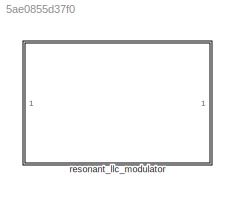
MODEL slx_5ae0855d37f0
KIND library
CONFIG AbsTol = auto
CONFIG EnableMultiTasking = off
CONFIG FixedStep = auto
CONFIG MaxStep = auto
CONFIG MinStep = auto
CONFIG RelTol = 1e-3
CONFIG SampleTimeConstraint = Unconstrained
CONFIG SolverName = VariableStepAuto
CONFIG StartTime = 0.0
CONFIG StopTime = 10.0
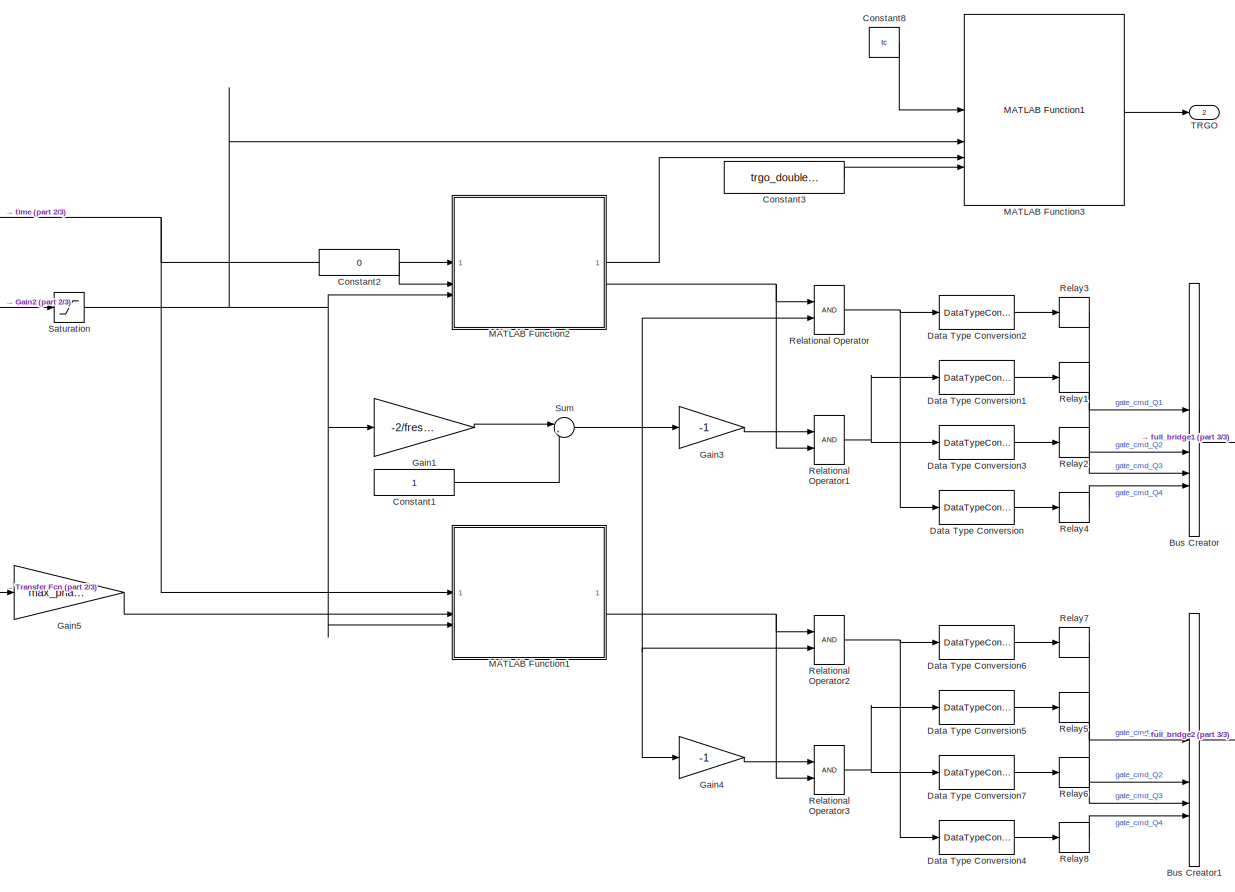
[diagram: resonant_llc_modulator - part 1/3, center side, full height]
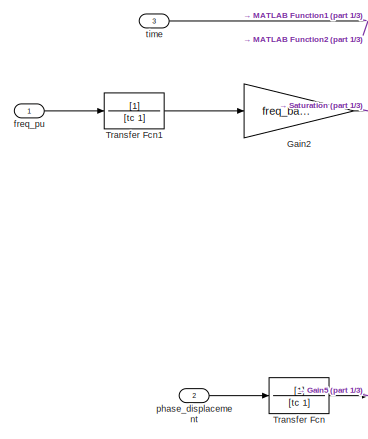
[diagram: resonant_llc_modulator - part 2/3, middle left region]
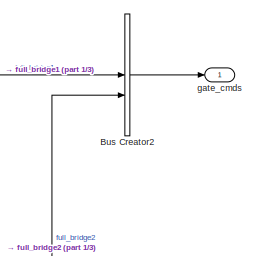
[diagram: resonant_llc_modulator - part 3/3, middle right region]
BLOCK [SubSystem] resonant_llc_modulator
BLOCK [BusCreator] resonant_llc_modulator/Bus Creator
  DisplayOption = bar
  InheritFromInputs = on
  Inputs = 4
BLOCK [BusCreator] resonant_llc_modulator/Bus Creator1
  DisplayOption = bar
  InheritFromInputs = on
  Inputs = 4
BLOCK [BusCreator] resonant_llc_modulator/Bus Creator2
  DisplayOption = bar
  InheritFromInputs = on
  Inputs = 2
BLOCK [Constant] resonant_llc_modulator/Constant1
BLOCK [Constant] resonant_llc_modulator/Constant2
  Value = 0
BLOCK [Constant] resonant_llc_modulator/Constant3
  Value = trgo_double_update
BLOCK [Constant] resonant_llc_modulator/Constant8
  Value = tc
BLOCK [DataTypeConversion] resonant_llc_modulator/Data Type Conversion
  OutDataTypeStr = double
  RndMeth = Floor
  SaturateOnIntegerOverflow = off
BLOCK [DataTypeConversion] resonant_llc_modulator/Data Type Conversion1
  OutDataTypeStr = double
  RndMeth = Floor
  SaturateOnIntegerOverflow = off
BLOCK [DataTypeConversion] resonant_llc_modulator/Data Type Conversion2
  OutDataTypeStr = double
  RndMeth = Floor
  SaturateOnIntegerOverflow = off
BLOCK [DataTypeConversion] resonant_llc_modulator/Data Type Conversion3
  OutDataTypeStr = double
  RndMeth = Floor
  SaturateOnIntegerOverflow = off
BLOCK [DataTypeConversion] resonant_llc_modulator/Data Type Conversion4
  OutDataTypeStr = double
  RndMeth = Floor
  SaturateOnIntegerOverflow = off
BLOCK [DataTypeConversion] resonant_llc_modulator/Data Type Conversion5
  OutDataTypeStr = double
  RndMeth = Floor
  SaturateOnIntegerOverflow = off
BLOCK [DataTypeConversion] resonant_llc_modulator/Data Type Conversion6
  OutDataTypeStr = double
  RndMeth = Floor
  SaturateOnIntegerOverflow = off
BLOCK [DataTypeConversion] resonant_llc_modulator/Data Type Conversion7
  OutDataTypeStr = double
  RndMeth = Floor
  SaturateOnIntegerOverflow = off
BLOCK [Gain] resonant_llc_modulator/Gain1
  Gain = -2/fres/sqrt(2)
  OutDataTypeStr = double
BLOCK [Gain] resonant_llc_modulator/Gain2
  Gain = freq_base
  OutDataTypeStr = double
BLOCK [Gain] resonant_llc_modulator/Gain3
  Gain = -1
  OutDataTypeStr = double
BLOCK [Gain] resonant_llc_modulator/Gain4
  Gain = -1
  OutDataTypeStr = double
BLOCK [Gain] resonant_llc_modulator/Gain5
  Gain = max_phase_displacement
  OutDataTypeStr = double
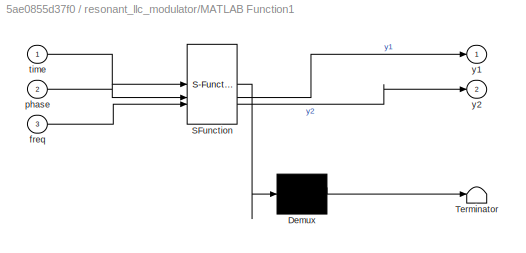
BLOCK [SubSystem] resonant_llc_modulator/MATLAB Function1
  ErrorFcn = Stateflow.Translate.translate
  PermitHierarchicalResolution = ExplicitOnly
  SFBlockType = MATLAB Function
  SystemSampleTime = tc
  TreatAsAtomicUnit = on
BLOCK [Demux] resonant_llc_modulator/MATLAB Function1/ Demux 
  Outputs = 1
BLOCK [S-Function] resonant_llc_modulator/MATLAB Function1/ SFunction 
  EnableBusSupport = off
  FunctionName = sf_sfun
  PortCounts = [3 3]
  SFcnIsStateOwnerBlock = off
  SFunctionDeploymentMode = off
  Tag = Stateflow S-Function 1
BLOCK [Terminator] resonant_llc_modulator/MATLAB Function1/ Terminator 
BLOCK [Inport] resonant_llc_modulator/MATLAB Function1/freq
  Port = 3
BLOCK [Inport] resonant_llc_modulator/MATLAB Function1/phase
  Port = 2
BLOCK [Inport] resonant_llc_modulator/MATLAB Function1/time
BLOCK [Outport] resonant_llc_modulator/MATLAB Function1/y1
BLOCK [Outport] resonant_llc_modulator/MATLAB Function1/y2
  Port = 2
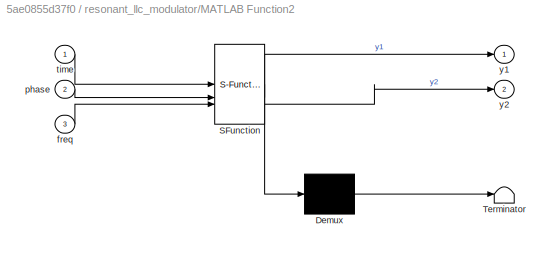
BLOCK [SubSystem] resonant_llc_modulator/MATLAB Function2
  ErrorFcn = Stateflow.Translate.translate
  PermitHierarchicalResolution = ExplicitOnly
  SFBlockType = MATLAB Function
  SystemSampleTime = tc
  TreatAsAtomicUnit = on
BLOCK [Demux] resonant_llc_modulator/MATLAB Function2/ Demux 
  Outputs = 1
BLOCK [S-Function] resonant_llc_modulator/MATLAB Function2/ SFunction 
  EnableBusSupport = off
  FunctionName = sf_sfun
  PortCounts = [3 3]
  SFcnIsStateOwnerBlock = off
  SFunctionDeploymentMode = off
  Tag = Stateflow S-Function 3
BLOCK [Terminator] resonant_llc_modulator/MATLAB Function2/ Terminator 
BLOCK [Inport] resonant_llc_modulator/MATLAB Function2/freq
  Port = 3
BLOCK [Inport] resonant_llc_modulator/MATLAB Function2/phase
  Port = 2
BLOCK [Inport] resonant_llc_modulator/MATLAB Function2/time
BLOCK [Outport] resonant_llc_modulator/MATLAB Function2/y1
BLOCK [Outport] resonant_llc_modulator/MATLAB Function2/y2
  Port = 2
BLOCK [Reference] resonant_llc_modulator/MATLAB Function3  REF=dab_single_phase_pwm_modulator/dab_single_phase_pwm_modulator/dab_single_phase_pwm_modulator/MATLAB Function1  (lib defined in slx_54a077001148)
  SourceBlock = dab_single_phase_pwm_modulator/dab_single_phase_pwm_modulator/dab_single_phase_pwm_modulator/MATLAB Function1
  SourceType = SubSystem
BLOCK [RelationalOperator] resonant_llc_modulator/Relational Operator
BLOCK [RelationalOperator] resonant_llc_modulator/Relational Operator1
BLOCK [RelationalOperator] resonant_llc_modulator/Relational Operator2
BLOCK [RelationalOperator] resonant_llc_modulator/Relational Operator3
BLOCK [Relay] resonant_llc_modulator/Relay1
  OffOutputValue = neg_cmd_gate
  OnOutputValue = pos_cmd_gate
BLOCK [Relay] resonant_llc_modulator/Relay2
  OffOutputValue = neg_cmd_gate
  OnOutputValue = pos_cmd_gate
BLOCK [Relay] resonant_llc_modulator/Relay3
  OffOutputValue = neg_cmd_gate
  OnOutputValue = pos_cmd_gate
BLOCK [Relay] resonant_llc_modulator/Relay4
  OffOutputValue = neg_cmd_gate
  OnOutputValue = pos_cmd_gate
BLOCK [Relay] resonant_llc_modulator/Relay5
  OffOutputValue = neg_cmd_gate
  OnOutputValue = pos_cmd_gate
BLOCK [Relay] resonant_llc_modulator/Relay6
  OffOutputValue = neg_cmd_gate
  OnOutputValue = pos_cmd_gate
BLOCK [Relay] resonant_llc_modulator/Relay7
  OffOutputValue = neg_cmd_gate
  OnOutputValue = pos_cmd_gate
BLOCK [Relay] resonant_llc_modulator/Relay8
  OffOutputValue = neg_cmd_gate
  OnOutputValue = pos_cmd_gate
BLOCK [Saturate] resonant_llc_modulator/Saturation
  LowerLimit = freq_min
  UpperLimit = freq_max
BLOCK [Sum] resonant_llc_modulator/Sum
  Inputs = |++
BLOCK [Outport] resonant_llc_modulator/TRGO
  Port = 2
BLOCK [TransferFcn] resonant_llc_modulator/Transfer Fcn
  Denominator = [tc 1]
BLOCK [TransferFcn] resonant_llc_modulator/Transfer Fcn1
  Denominator = [tc 1]
BLOCK [Inport] resonant_llc_modulator/freq_pu
BLOCK [Outport] resonant_llc_modulator/gate_cmds
BLOCK [Inport] resonant_llc_modulator/phase_displacement
  Port = 2
BLOCK [Inport] resonant_llc_modulator/time
  Port = 3
LINE resonant_llc_modulator/Bus Creator1:1 -> resonant_llc_modulator/Bus Creator2:2
LINE resonant_llc_modulator/Bus Creator2:1 -> resonant_llc_modulator/gate_cmds:1
LINE resonant_llc_modulator/Bus Creator:1 -> resonant_llc_modulator/Bus Creator2:1
LINE resonant_llc_modulator/Constant1:1 -> resonant_llc_modulator/Sum:2
LINE resonant_llc_modulator/Constant2:1 -> resonant_llc_modulator/MATLAB Function2:2
LINE resonant_llc_modulator/Constant3:1 -> resonant_llc_modulator/MATLAB Function3:4
LINE resonant_llc_modulator/Constant8:1 -> resonant_llc_modulator/MATLAB Function3:1
LINE resonant_llc_modulator/Data Type Conversion1:1 -> resonant_llc_modulator/Relay1:1
LINE resonant_llc_modulator/Data Type Conversion2:1 -> resonant_llc_modulator/Relay3:1
LINE resonant_llc_modulator/Data Type Conversion3:1 -> resonant_llc_modulator/Relay2:1
LINE resonant_llc_modulator/Data Type Conversion4:1 -> resonant_llc_modulator/Relay8:1
LINE resonant_llc_modulator/Data Type Conversion5:1 -> resonant_llc_modulator/Relay5:1
LINE resonant_llc_modulator/Data Type Conversion6:1 -> resonant_llc_modulator/Relay7:1
LINE resonant_llc_modulator/Data Type Conversion7:1 -> resonant_llc_modulator/Relay6:1
LINE resonant_llc_modulator/Data Type Conversion:1 -> resonant_llc_modulator/Relay4:1
LINE resonant_llc_modulator/Gain1:1 -> resonant_llc_modulator/Sum:1
LINE resonant_llc_modulator/Gain2:1 -> resonant_llc_modulator/Saturation:1
LINE resonant_llc_modulator/Gain3:1 -> resonant_llc_modulator/Relational Operator1:1
LINE resonant_llc_modulator/Gain4:1 -> resonant_llc_modulator/Relational Operator3:1
LINE resonant_llc_modulator/Gain5:1 -> resonant_llc_modulator/MATLAB Function1:2
NET resonant_llc_modulator/MATLAB Function1:2 -> resonant_llc_modulator/Relational Operator2:1, resonant_llc_modulator/Relational Operator3:2
LINE resonant_llc_modulator/MATLAB Function2:1 -> resonant_llc_modulator/MATLAB Function3:3
NET resonant_llc_modulator/MATLAB Function2:2 -> resonant_llc_modulator/Relational Operator1:2, resonant_llc_modulator/Relational Operator:1
LINE resonant_llc_modulator/MATLAB Function3:1 -> resonant_llc_modulator/TRGO:1
NET resonant_llc_modulator/Relational Operator1:1 -> resonant_llc_modulator/Data Type Conversion1:1, resonant_llc_modulator/Data Type Conversion3:1
NET resonant_llc_modulator/Relational Operator2:1 -> resonant_llc_modulator/Data Type Conversion4:1, resonant_llc_modulator/Data Type Conversion6:1
NET resonant_llc_modulator/Relational Operator3:1 -> resonant_llc_modulator/Data Type Conversion5:1, resonant_llc_modulator/Data Type Conversion7:1
NET resonant_llc_modulator/Relational Operator:1 -> resonant_llc_modulator/Data Type Conversion2:1, resonant_llc_modulator/Data Type Conversion:1
LINE resonant_llc_modulator/Relay1:1 -> resonant_llc_modulator/Bus Creator:2
LINE resonant_llc_modulator/Relay2:1 -> resonant_llc_modulator/Bus Creator:3
LINE resonant_llc_modulator/Relay3:1 -> resonant_llc_modulator/Bus Creator:1
LINE resonant_llc_modulator/Relay4:1 -> resonant_llc_modulator/Bus Creator:4
LINE resonant_llc_modulator/Relay5:1 -> resonant_llc_modulator/Bus Creator1:2
LINE resonant_llc_modulator/Relay6:1 -> resonant_llc_modulator/Bus Creator1:3
LINE resonant_llc_modulator/Relay7:1 -> resonant_llc_modulator/Bus Creator1:1
LINE resonant_llc_modulator/Relay8:1 -> resonant_llc_modulator/Bus Creator1:4
NET resonant_llc_modulator/Saturation:1 -> resonant_llc_modulator/Gain1:1, resonant_llc_modulator/MATLAB Function1:3, resonant_llc_modulator/MATLAB Function2:3, resonant_llc_modulator/MATLAB Function3:2
NET resonant_llc_modulator/Sum:1 -> resonant_llc_modulator/Gain3:1, resonant_llc_modulator/Gain4:1, resonant_llc_modulator/Relational Operator2:2, resonant_llc_modulator/Relational Operator:2
LINE resonant_llc_modulator/Transfer Fcn1:1 -> resonant_llc_modulator/Gain2:1
LINE resonant_llc_modulator/Transfer Fcn:1 -> resonant_llc_modulator/Gain5:1
LINE resonant_llc_modulator/freq_pu:1 -> resonant_llc_modulator/Transfer Fcn1:1
LINE resonant_llc_modulator/phase_displacement:1 -> resonant_llc_modulator/Transfer Fcn:1
NET resonant_llc_modulator/time:1 -> resonant_llc_modulator/MATLAB Function1:1, resonant_llc_modulator/MATLAB Function2:1
note: NET lines group one-source signal fan-out (src -> all destinations, sorted); 1:1 wires keep LINE
CHART resonant_llc_modulator/MATLAB Function1 states=1 transitions=1
  STATE_LABEL 'eML_blk_kernel()'
  STATE_LABEL 'SCRIPT:\nfunction [y1, y2] = triangle(time,phase,freq)\nx = sin(2*pi*freq*time - phase -pi/2);\ny1 = asin(x)/pi + 1/2;\ny2 = 2*asin(x)/pi;\n'
CHART resonant_llc_modulator/MATLAB Function2 states=1 transitions=1
  STATE_LABEL 'eML_blk_kernel()'
  STATE_LABEL 'SCRIPT:\nfunction [y1, y2] = triangle(time,phase,freq)\nx = sin(2*pi*freq*time - phase -pi/2);\ny1 = asin(x)/pi + 1/2;\ny2 = 2*asin(x)/pi;\n'
CHART  states=0 transitions=0
CHART  states=0 transitions=0
